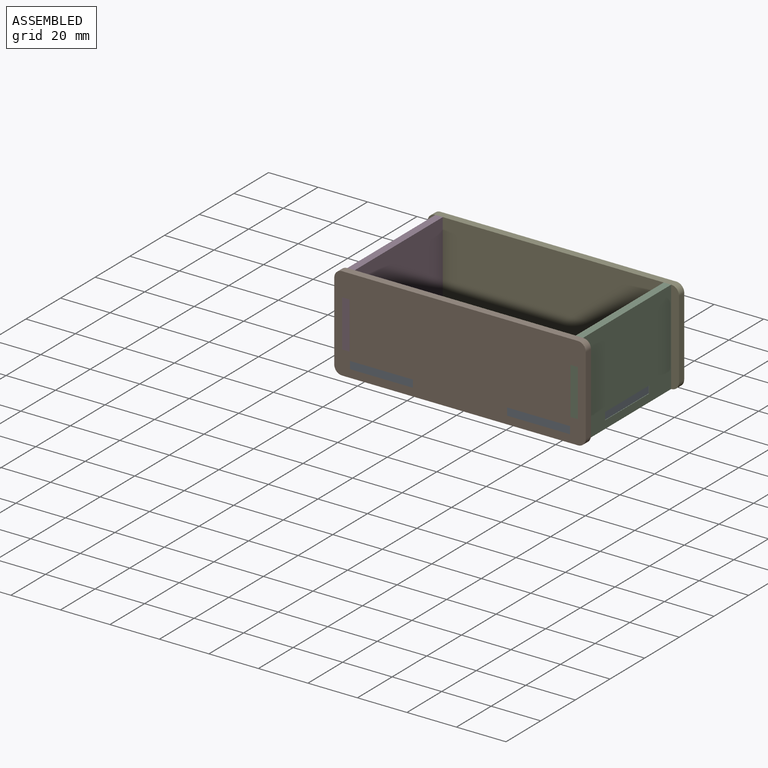
[diagram: assembled view]
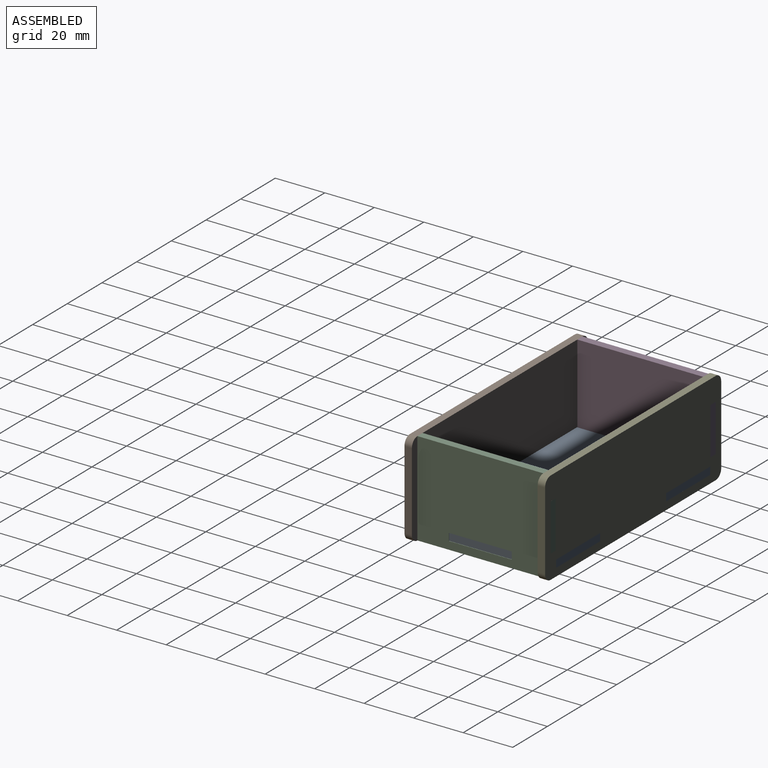
[diagram: assembled view, second angle]
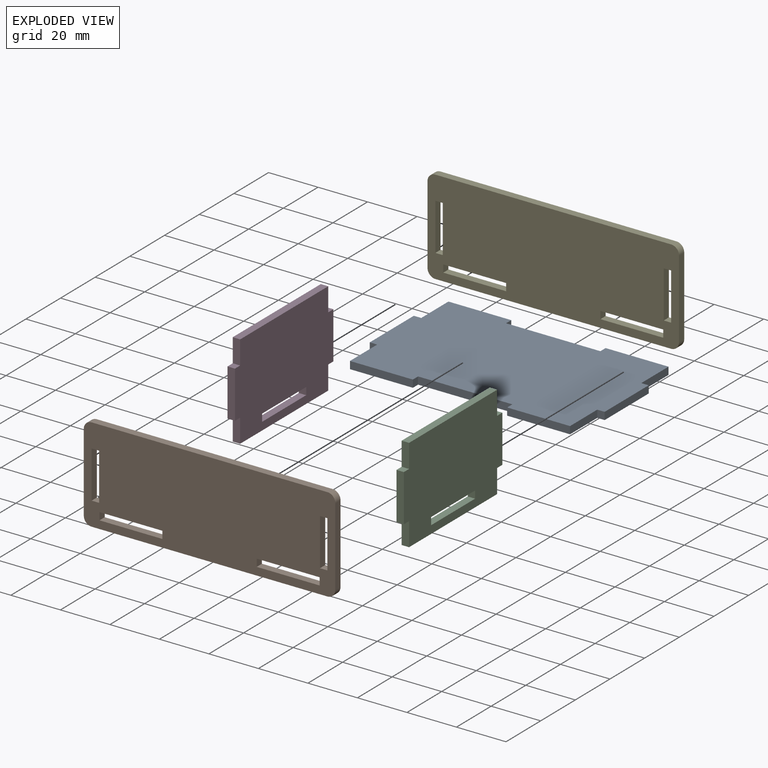
[diagram: exploded view]
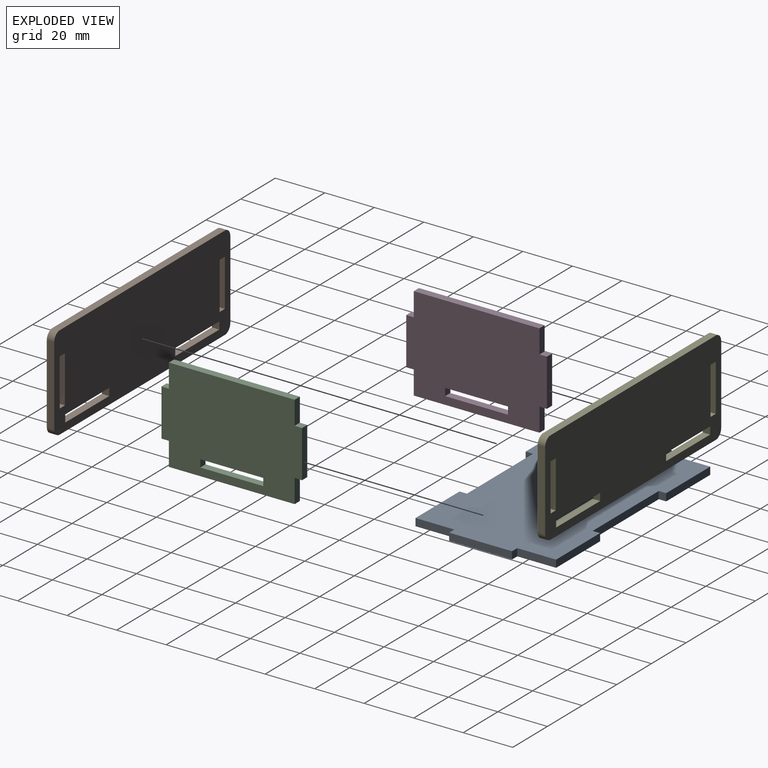
[diagram: exploded view, second angle]
ASSEMBLY  parts=5 mates=4
PART A: 22 faces, bbox 94.9x56.8x3 mm
  f0: plane 15.7x3mm, normal (-1,0,0), area 47mm2, adj f1,f19,f20,f21
  f1: plane 25.4x3mm, normal (0,-1,0), area 76.1mm2, adj f0,f2,f20,f21
  f2: plane 3x3mm, normal (1,0,0), area 9mm2, adj f1,f3,f20,f21
  f3: plane 38.1x3mm, normal (0,-1,0), area 114.2mm2, adj f2,f4,f20,f21
  f4: plane 3x3mm, normal (-1,0,0), area 9mm2, adj f3,f5,f20,f21
  f5: plane 25.4x3mm, normal (0,-1,0), area 76.1mm2, adj f4,f6,f20,f21
  f6: plane 15.7x3mm, normal (1,0,0), area 47mm2, adj f5,f7,f20,f21
  f7: plane 3x3mm, normal (0,-1,0), area 9mm2, adj f6,f8,f20,f21
  f8: plane 25.4x3mm, normal (1,0,0), area 76.1mm2, adj f7,f9,f20,f21
  f9: plane 3x3mm, normal (0,1,0), area 9mm2, adj f8,f10,f20,f21
  f10: plane 15.7x3mm, normal (1,0,0), area 47mm2, adj f9,f11,f20,f21
  f11: plane 25.4x3mm, normal (0,1,0), area 76.1mm2, adj f10,f12,f20,f21
  f12: plane 3x3mm, normal (-1,0,0), area 9mm2, adj f11,f13,f20,f21
  f13: plane 38.1x3mm, normal (0,1,0), area 114.2mm2, adj f12,f14,f20,f21
  f14: plane 3x3mm, normal (1,0,0), area 9mm2, adj f13,f15,f20,f21
  f15: plane 25.4x3mm, normal (0,1,0), area 76.1mm2, adj f14,f16,f20,f21
  f16: plane 15.7x3mm, normal (-1,0,0), area 47mm2, adj f15,f17,f20,f21
  f17: plane 3x3mm, normal (0,1,0), area 9mm2, adj f16,f18,f20,f21
  f18: plane 25.4x3mm, normal (-1,0,0), area 76.1mm2, adj f17,f19,f20,f21
  f19: plane 3x3mm, normal (0,-1,0), area 9mm2, adj f0,f18,f20,f21
  f20: plane 94.89x56.79mm, normal (0,0,1), area 4972.9mm2, adj f0,f1,f2,f3,f4,f5,f6,f7
  f21: plane 94.89x56.79mm, normal (0,0,-1), area 4972.9mm2, adj f0,f1,f2,f3,f4,f5,f6,f7
PART B: 26 faces, bbox 101.6x3x38.1 mm
  f0: plane 19.05x3mm, normal (-1,0,0), area 57.1mm2, adj f1,f23,f24,f25
  f1: plane 3x3mm, normal (0,0,1), area 9mm2, adj f0,f2,f24,f25
  f2: plane 19.05x3mm, normal (1,0,0), area 57.1mm2, adj f1,f23,f24,f25
  f3: plane 19.05x3mm, normal (-1,0,0), area 57.1mm2, adj f4,f19,f24,f25
  f4: plane 3x3mm, normal (0,0,1), area 9mm2, adj f3,f5,f24,f25
  f5: plane 19.05x3mm, normal (1,0,0), area 57.1mm2, adj f4,f19,f24,f25
  f6: plane 3x3mm, normal (1,0,0), area 9mm2, adj f7,f20,f24,f25
  f7: plane 25.4x3mm, normal (0,0,-1), area 76.1mm2, adj f6,f8,f24,f25
  f8: plane 3x3mm, normal (-1,0,0), area 9mm2, adj f7,f20,f24,f25
  f9: plane 3x3mm, normal (1,0,0), area 9mm2, adj f10,f21,f24,f25
  f10: plane 25.4x3mm, normal (0,0,-1), area 76.1mm2, adj f9,f11,f24,f25
  f11: plane 3x3mm, normal (-1,0,0), area 9mm2, adj f10,f21,f24,f25
  f12: plane 95.25x3mm, normal (0,0,1), area 285.5mm2, adj f13,f22,f24,f25
  f13: cylinder r=3.17mm len=3.18mm, axis (0,1,0), area 14.9mm2, adj f12,f14,f24,f25
  f14: plane 31.75x3mm, normal (-1,0,0), area 95.2mm2, adj f13,f15,f24,f25
  f15: cylinder r=3.17mm len=3.18mm, axis (0,1,0), area 14.9mm2, adj f14,f16,f24,f25
  f16: plane 95.25x3mm, normal (0,0,-1), area 285.5mm2, adj f15,f17,f24,f25
  f17: cylinder r=3.17mm len=3.18mm, axis (0,1,0), area 14.9mm2, adj f16,f18,f24,f25
  f18: plane 31.75x3mm, normal (1,0,0), area 95.2mm2, adj f17,f22,f24,f25
  f19: plane 3x3mm, normal (0,0,-1), area 9mm2, adj f3,f5,f24,f25
  f20: plane 25.4x3mm, normal (0,0,1), area 76.1mm2, adj f6,f8,f24,f25
  f21: plane 25.4x3mm, normal (0,0,1), area 76.1mm2, adj f9,f11,f24,f25
  f22: cylinder r=3.17mm len=3.18mm, axis (0,1,0), area 14.9mm2, adj f12,f18,f24,f25
  f23: plane 3x3mm, normal (0,0,-1), area 9mm2, adj f0,f2,f24,f25
  f24: plane 101.6x38.1mm, normal (0,-1,0), area 3595.9mm2, adj f0,f1,f2,f3,f4,f5,f6,f7
  f25: plane 101.6x38.1mm, normal (0,1,0), area 3595.9mm2, adj f0,f1,f2,f3,f4,f5,f6,f7
PART C: 18 faces, bbox 3x56.8x38.1 mm
  f0: plane 25.4x3mm, normal (0,0,-1), area 76.1mm2, adj f1,f15,f16,f17
  f1: plane 3x3mm, normal (0,-1,0), area 9mm2, adj f0,f2,f16,f17
  f2: plane 25.4x3mm, normal (0,0,1), area 76.1mm2, adj f1,f15,f16,f17
  f3: plane 9.53x3mm, normal (0,1,0), area 28.5mm2, adj f4,f14,f16,f17
  f4: plane 3x3mm, normal (0,0,-1), area 9mm2, adj f3,f5,f16,f17
  f5: plane 19.05x3mm, normal (0,1,0), area 57.1mm2, adj f4,f6,f16,f17
  f6: plane 3x3mm, normal (0,0,1), area 9mm2, adj f5,f7,f16,f17
  f7: plane 9.53x3mm, normal (0,1,0), area 28.5mm2, adj f6,f8,f16,f17
  f8: plane 50.8x3mm, normal (0,0,1), area 152.3mm2, adj f7,f9,f16,f17
  f9: plane 9.53x3mm, normal (0,-1,0), area 28.5mm2, adj f8,f10,f16,f17
  f10: plane 3x3mm, normal (0,0,1), area 9mm2, adj f9,f11,f16,f17
  f11: plane 19.05x3mm, normal (0,-1,0), area 57.1mm2, adj f10,f12,f16,f17
  f12: plane 3x3mm, normal (0,0,-1), area 9mm2, adj f11,f13,f16,f17
  f13: plane 9.53x3mm, normal (0,-1,0), area 28.5mm2, adj f12,f14,f16,f17
  f14: plane 50.8x3mm, normal (0,0,-1), area 152.3mm2, adj f3,f13,f16,f17
  f15: plane 3x3mm, normal (0,1,0), area 9mm2, adj f0,f2,f16,f17
  f16: plane 56.79x38.1mm, normal (1,0,0), area 1973.5mm2, adj f0,f1,f2,f3,f4,f5,f6,f7
  f17: plane 56.79x38.1mm, normal (-1,0,0), area 1973.5mm2, adj f0,f1,f2,f3,f4,f5,f6,f7
PART D: same geometry as C
PART E: same geometry as B
PLACE A t=(-18.99,14.34,11.55)mm
PLACE B t=(-18.99,-36.46,8.37)mm
PLACE C t=(25.64,-11.06,27.42)mm
PLACE D t=(-66.61,-11.06,27.42)mm
PLACE E t=(-18.99,17.33,8.37)mm
MATE fastened A.f11 <-> E.f25  axis (0,1,0) through (25.46,17.33,14.54)mm
MATE fastened C.f5 <-> E.f25  axis (0,1,0) through (25.64,17.33,36.95)mm
MATE fastened B.f24 <-> A.f1  axis (0,-1,0) through (-38.04,-39.46,14.54)mm
MATE fastened D.f5 <-> E.f25  axis (0,1,0) through (-63.61,17.33,36.95)mm
